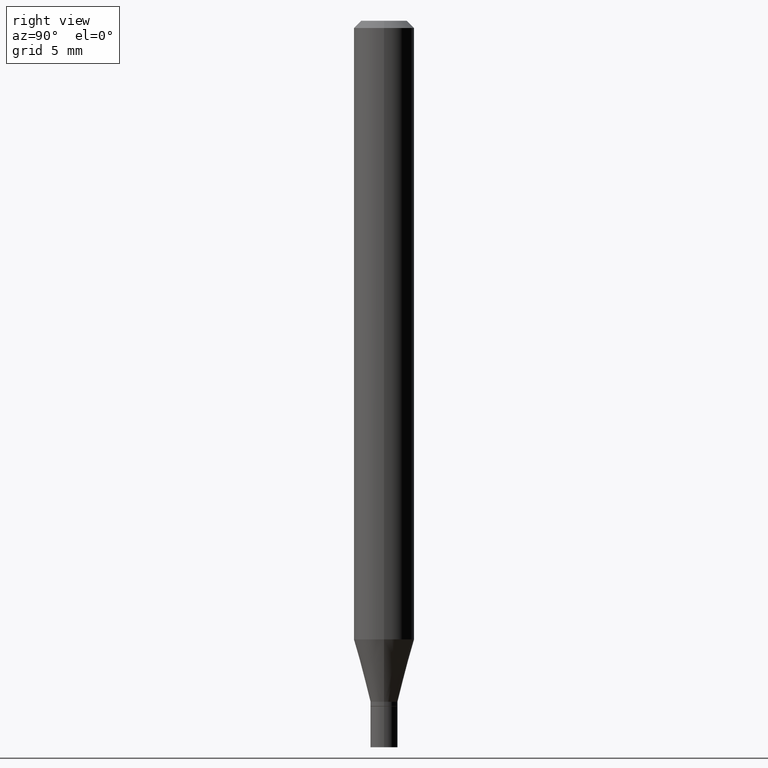
[diagram: clean part render]
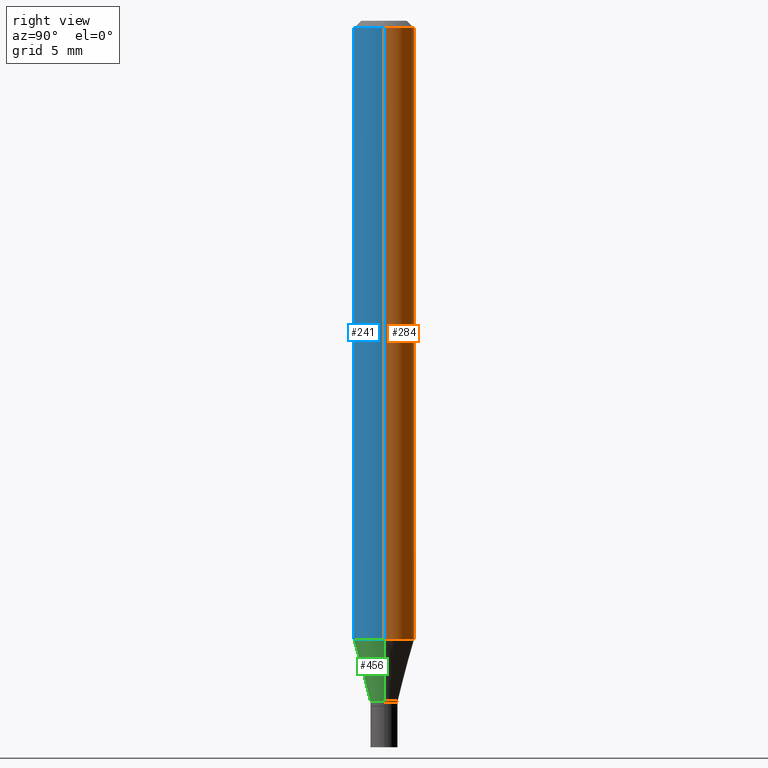
[diagram: same view with three faces highlighted in distinct colors, each labeled with its STEP entity id]
A machine part, right view with three faces highlighted in distinct colors.
Their STEP definitions:

[orange] entity #284 — the highlighted cylindrical surface (edge-blend (fillet) strip) has radius 1.5875 mm, axis along (-0, 0, 1).
#22 = LINE ( 'NONE', #163, #46 ) ;
#39 = EDGE_CURVE ( 'NONE', #202, #278, #432, .T. ) ;
#41 = CARTESIAN_POINT ( 'NONE',  ( 0.06250000000000000000, -4.888073874380388472E-16, -0.01499999999999999944 ) ) ;
#46 = VECTOR ( 'NONE', #457, 39.37007874015748143 ) ;
#53 = CARTESIAN_POINT ( 'NONE',  ( 3.668203209277705088E-31, -5.237222008264718399E-17, -0.01499999999999999944 ) ) ;
#56 = DIRECTION ( 'NONE',  ( -2.445468806185136597E-29, 3.491481338843145583E-15, 1.000000000000000000 ) ) ;
#82 = EDGE_CURVE ( 'NONE', #311, #386, #336, .T. ) ;
#84 = LINE ( 'NONE', #334, #221 ) ;
#102 = EDGE_CURVE ( 'NONE', #386, #278, #84, .T. ) ;
#105 = CARTESIAN_POINT ( 'NONE',  ( -0.06250000000000000000, -1.811834127206330894E-15, -0.01499999999999999944 ) ) ;
#109 = ORIENTED_EDGE ( 'NONE', *, *, #102, .T. ) ;
#128 = DIRECTION ( 'NONE',  ( -2.445468806185136877E-29, 3.491481338843145188E-15, 1.000000000000000000 ) ) ;
#163 = CARTESIAN_POINT ( 'NONE',  ( 0.06250000000000000000, -4.364351673553916694E-16, 3.047610484872459871E-30 ) ) ;
#165 = DIRECTION ( 'NONE',  ( 1.000000000000000000, -6.982962677686266711E-15, 4.876176775795935793E-29 ) ) ;
#166 = EDGE_LOOP ( 'NONE', ( #429, #109, #434, #428 ) ) ;
#181 = AXIS2_PLACEMENT_3D ( 'NONE', #398, #293, #165 ) ;
#202 = VERTEX_POINT ( 'NONE', #41 ) ;
#209 = AXIS2_PLACEMENT_3D ( 'NONE', #53, #448, #415 ) ;
#221 = VECTOR ( 'NONE', #128, 39.37007874015748143 ) ;
#225 = CARTESIAN_POINT ( 'NONE',  ( -0.06250000000000000000, -4.015385244180076930E-15, -1.277244247138873634 ) ) ;
#258 = CARTESIAN_POINT ( 'NONE',  ( 3.123460964257534823E-29, -4.459474454030139547E-15, -1.277244247138873634 ) ) ;
#278 = VERTEX_POINT ( 'NONE', #105 ) ;
#284 = ADVANCED_FACE ( 'NONE', ( #397 ), #319, .T. ) ;
#290 = CARTESIAN_POINT ( 'NONE',  ( 0.06250000000000000000, -4.895909621385532005E-15, -1.277244247138873634 ) ) ;
#293 = DIRECTION ( 'NONE',  ( -2.445468806185136597E-29, 3.491481338843145583E-15, 1.000000000000000000 ) ) ;
#311 = VERTEX_POINT ( 'NONE', #290 ) ;
#315 = AXIS2_PLACEMENT_3D ( 'NONE', #258, #56, #451 ) ;
#319 = CYLINDRICAL_SURFACE ( 'NONE', #181, 0.06250000000000000000 ) ;
#334 = CARTESIAN_POINT ( 'NONE',  ( -0.06250000000000000000, 4.440892098500626162E-16, -3.074334431409316114E-30 ) ) ;
#336 = CIRCLE ( 'NONE', #315, 0.06250000000000000000 ) ;
#386 = VERTEX_POINT ( 'NONE', #225 ) ;
#397 = FACE_OUTER_BOUND ( 'NONE', #166, .T. ) ;
#398 = CARTESIAN_POINT ( 'NONE',  ( 0.000000000000000000, 0.000000000000000000, 0.000000000000000000 ) ) ;
#411 = EDGE_CURVE ( 'NONE', #311, #202, #22, .T. ) ;
#415 = DIRECTION ( 'NONE',  ( 1.000000000000000000, -6.982962677686266711E-15, 0.000000000000000000 ) ) ;
#428 = ORIENTED_EDGE ( 'NONE', *, *, #411, .F. ) ;
#429 = ORIENTED_EDGE ( 'NONE', *, *, #82, .T. ) ;
#432 = CIRCLE ( 'NONE', #209, 0.06250000000000000000 ) ;
#434 = ORIENTED_EDGE ( 'NONE', *, *, #39, .F. ) ;
#448 = DIRECTION ( 'NONE',  ( -2.445468806185136597E-29, 3.491481338843145583E-15, 1.000000000000000000 ) ) ;
#451 = DIRECTION ( 'NONE',  ( 1.000000000000000000, -6.982962677686262766E-15, 0.000000000000000000 ) ) ;
#457 = DIRECTION ( 'NONE',  ( -2.445468806185136877E-29, 3.491481338843145188E-15, 1.000000000000000000 ) ) ;

[blue] entity #241 — the highlighted cylindrical surface (edge-blend (fillet) strip) has radius 1.5875 mm, axis along (-0, 0, 1).
#1 = CARTESIAN_POINT ( 'NONE',  ( 0.000000000000000000, 0.000000000000000000, 0.000000000000000000 ) ) ;
#22 = LINE ( 'NONE', #163, #46 ) ;
#23 = ORIENTED_EDGE ( 'NONE', *, *, #102, .F. ) ;
#41 = CARTESIAN_POINT ( 'NONE',  ( 0.06250000000000000000, -4.888073874380388472E-16, -0.01499999999999999944 ) ) ;
#46 = VECTOR ( 'NONE', #457, 39.37007874015748143 ) ;
#84 = LINE ( 'NONE', #334, #221 ) ;
#102 = EDGE_CURVE ( 'NONE', #386, #278, #84, .T. ) ;
#105 = CARTESIAN_POINT ( 'NONE',  ( -0.06250000000000000000, -1.811834127206330894E-15, -0.01499999999999999944 ) ) ;
#114 = AXIS2_PLACEMENT_3D ( 'NONE', #444, #364, #287 ) ;
#128 = DIRECTION ( 'NONE',  ( -2.445468806185136877E-29, 3.491481338843145188E-15, 1.000000000000000000 ) ) ;
#163 = CARTESIAN_POINT ( 'NONE',  ( 0.06250000000000000000, -4.364351673553916694E-16, 3.047610484872459871E-30 ) ) ;
#176 = CYLINDRICAL_SURFACE ( 'NONE', #354, 0.06250000000000000000 ) ;
#182 = FACE_OUTER_BOUND ( 'NONE', #270, .T. ) ;
#202 = VERTEX_POINT ( 'NONE', #41 ) ;
#221 = VECTOR ( 'NONE', #128, 39.37007874015748143 ) ;
#225 = CARTESIAN_POINT ( 'NONE',  ( -0.06250000000000000000, -4.015385244180076930E-15, -1.277244247138873634 ) ) ;
#241 = ADVANCED_FACE ( 'NONE', ( #182 ), #176, .T. ) ;
#270 = EDGE_LOOP ( 'NONE', ( #23, #310, #382, #353 ) ) ;
#278 = VERTEX_POINT ( 'NONE', #105 ) ;
#282 = CIRCLE ( 'NONE', #114, 0.06250000000000000000 ) ;
#287 = DIRECTION ( 'NONE',  ( 1.000000000000000000, -6.982962677686262766E-15, 0.000000000000000000 ) ) ;
#289 = AXIS2_PLACEMENT_3D ( 'NONE', #439, #407, #298 ) ;
#290 = CARTESIAN_POINT ( 'NONE',  ( 0.06250000000000000000, -4.895909621385532005E-15, -1.277244247138873634 ) ) ;
#298 = DIRECTION ( 'NONE',  ( 1.000000000000000000, -6.982962677686266711E-15, 0.000000000000000000 ) ) ;
#310 = ORIENTED_EDGE ( 'NONE', *, *, #431, .T. ) ;
#311 = VERTEX_POINT ( 'NONE', #290 ) ;
#318 = DIRECTION ( 'NONE',  ( -2.445468806185136597E-29, 3.491481338843145583E-15, 1.000000000000000000 ) ) ;
#320 = EDGE_CURVE ( 'NONE', #278, #202, #450, .T. ) ;
#324 = DIRECTION ( 'NONE',  ( 1.000000000000000000, -6.982962677686266711E-15, 4.876176775795935793E-29 ) ) ;
#334 = CARTESIAN_POINT ( 'NONE',  ( -0.06250000000000000000, 4.440892098500626162E-16, -3.074334431409316114E-30 ) ) ;
#353 = ORIENTED_EDGE ( 'NONE', *, *, #320, .F. ) ;
#354 = AXIS2_PLACEMENT_3D ( 'NONE', #1, #318, #324 ) ;
#364 = DIRECTION ( 'NONE',  ( -2.445468806185136597E-29, 3.491481338843145583E-15, 1.000000000000000000 ) ) ;
#382 = ORIENTED_EDGE ( 'NONE', *, *, #411, .T. ) ;
#386 = VERTEX_POINT ( 'NONE', #225 ) ;
#407 = DIRECTION ( 'NONE',  ( -2.445468806185136597E-29, 3.491481338843145583E-15, 1.000000000000000000 ) ) ;
#411 = EDGE_CURVE ( 'NONE', #311, #202, #22, .T. ) ;
#431 = EDGE_CURVE ( 'NONE', #386, #311, #282, .T. ) ;
#439 = CARTESIAN_POINT ( 'NONE',  ( 3.668203209277705088E-31, -5.237222008264718399E-17, -0.01499999999999999944 ) ) ;
#444 = CARTESIAN_POINT ( 'NONE',  ( 3.123460964257534823E-29, -4.459474454030139547E-15, -1.277244247138873634 ) ) ;
#450 = CIRCLE ( 'NONE', #289, 0.06250000000000000000 ) ;
#457 = DIRECTION ( 'NONE',  ( -2.445468806185136877E-29, 3.491481338843145188E-15, 1.000000000000000000 ) ) ;

[green] entity #456 — the highlighted conical surface has half-angle 15 deg.
#21 = CARTESIAN_POINT ( 'NONE',  ( -0.02799999999999992426, -4.362728020290356187E-15, -1.406000000000000139 ) ) ;
#29 = EDGE_CURVE ( 'NONE', #347, #386, #73, .T. ) ;
#32 = VERTEX_POINT ( 'NONE', #256 ) ;
#38 = DIRECTION ( 'NONE',  ( -2.445468806185136597E-29, 3.491481338843145583E-15, 1.000000000000000000 ) ) ;
#47 = DIRECTION ( 'NONE',  ( -2.445468806185136597E-29, 3.491481338843145583E-15, 1.000000000000000000 ) ) ;
#65 = EDGE_LOOP ( 'NONE', ( #247, #461, #430, #196 ) ) ;
#73 = LINE ( 'NONE', #260, #337 ) ;
#81 = DIRECTION ( 'NONE',  ( 1.000000000000000000, -6.982962677686282488E-15, 0.000000000000000000 ) ) ;
#98 = CONICAL_SURFACE ( 'NONE', #466, 0.02799999999999992426, 0.2617993877991492413 ) ;
#112 = DIRECTION ( 'NONE',  ( 1.000000000000000000, -6.982962677686282488E-15, 0.000000000000000000 ) ) ;
#114 = AXIS2_PLACEMENT_3D ( 'NONE', #444, #364, #287 ) ;
#183 = EDGE_CURVE ( 'NONE', #32, #311, #280, .T. ) ;
#196 = ORIENTED_EDGE ( 'NONE', *, *, #431, .F. ) ;
#200 = EDGE_CURVE ( 'NONE', #347, #32, #338, .T. ) ;
#225 = CARTESIAN_POINT ( 'NONE',  ( -0.06250000000000000000, -4.015385244180076930E-15, -1.277244247138873634 ) ) ;
#247 = ORIENTED_EDGE ( 'NONE', *, *, #29, .F. ) ;
#248 = FACE_OUTER_BOUND ( 'NONE', #65, .T. ) ;
#256 = CARTESIAN_POINT ( 'NONE',  ( 0.02799999999999992426, -5.104545717388679172E-15, -1.406000000000000139 ) ) ;
#260 = CARTESIAN_POINT ( 'NONE',  ( -0.02799999999999992426, -4.710070796400636233E-15, -1.406000000000000139 ) ) ;
#280 = LINE ( 'NONE', #288, #412 ) ;
#282 = CIRCLE ( 'NONE', #114, 0.06250000000000000000 ) ;
#287 = DIRECTION ( 'NONE',  ( 1.000000000000000000, -6.982962677686262766E-15, 0.000000000000000000 ) ) ;
#288 = CARTESIAN_POINT ( 'NONE',  ( 0.02799999999999992426, -5.104545717388679172E-15, -1.406000000000000139 ) ) ;
#290 = CARTESIAN_POINT ( 'NONE',  ( 0.06250000000000000000, -4.895909621385532005E-15, -1.277244247138873634 ) ) ;
#311 = VERTEX_POINT ( 'NONE', #290 ) ;
#337 = VECTOR ( 'NONE', #374, 39.37007874015748143 ) ;
#338 = CIRCLE ( 'NONE', #378, 0.02799999999999992426 ) ;
#347 = VERTEX_POINT ( 'NONE', #21 ) ;
#356 = CARTESIAN_POINT ( 'NONE',  ( 3.438329141496302499E-29, -4.909022762413463673E-15, -1.406000000000000139 ) ) ;
#360 = DIRECTION ( 'NONE',  ( 0.2588190451025205729, 1.565188264969628081E-15, 0.9659258262890684232 ) ) ;
#364 = DIRECTION ( 'NONE',  ( -2.445468806185136597E-29, 3.491481338843145583E-15, 1.000000000000000000 ) ) ;
#374 = DIRECTION ( 'NONE',  ( -0.2588190451025205729, 5.211531920934545520E-15, 0.9659258262890684232 ) ) ;
#378 = AXIS2_PLACEMENT_3D ( 'NONE', #356, #38, #112 ) ;
#386 = VERTEX_POINT ( 'NONE', #225 ) ;
#402 = CARTESIAN_POINT ( 'NONE',  ( 3.438329141496302499E-29, -4.909022762413463673E-15, -1.406000000000000139 ) ) ;
#412 = VECTOR ( 'NONE', #360, 39.37007874015748143 ) ;
#430 = ORIENTED_EDGE ( 'NONE', *, *, #183, .T. ) ;
#431 = EDGE_CURVE ( 'NONE', #386, #311, #282, .T. ) ;
#444 = CARTESIAN_POINT ( 'NONE',  ( 3.123460964257534823E-29, -4.459474454030139547E-15, -1.277244247138873634 ) ) ;
#456 = ADVANCED_FACE ( 'NONE', ( #248 ), #98, .T. ) ;
#461 = ORIENTED_EDGE ( 'NONE', *, *, #200, .T. ) ;
#466 = AXIS2_PLACEMENT_3D ( 'NONE', #402, #47, #81 ) ;